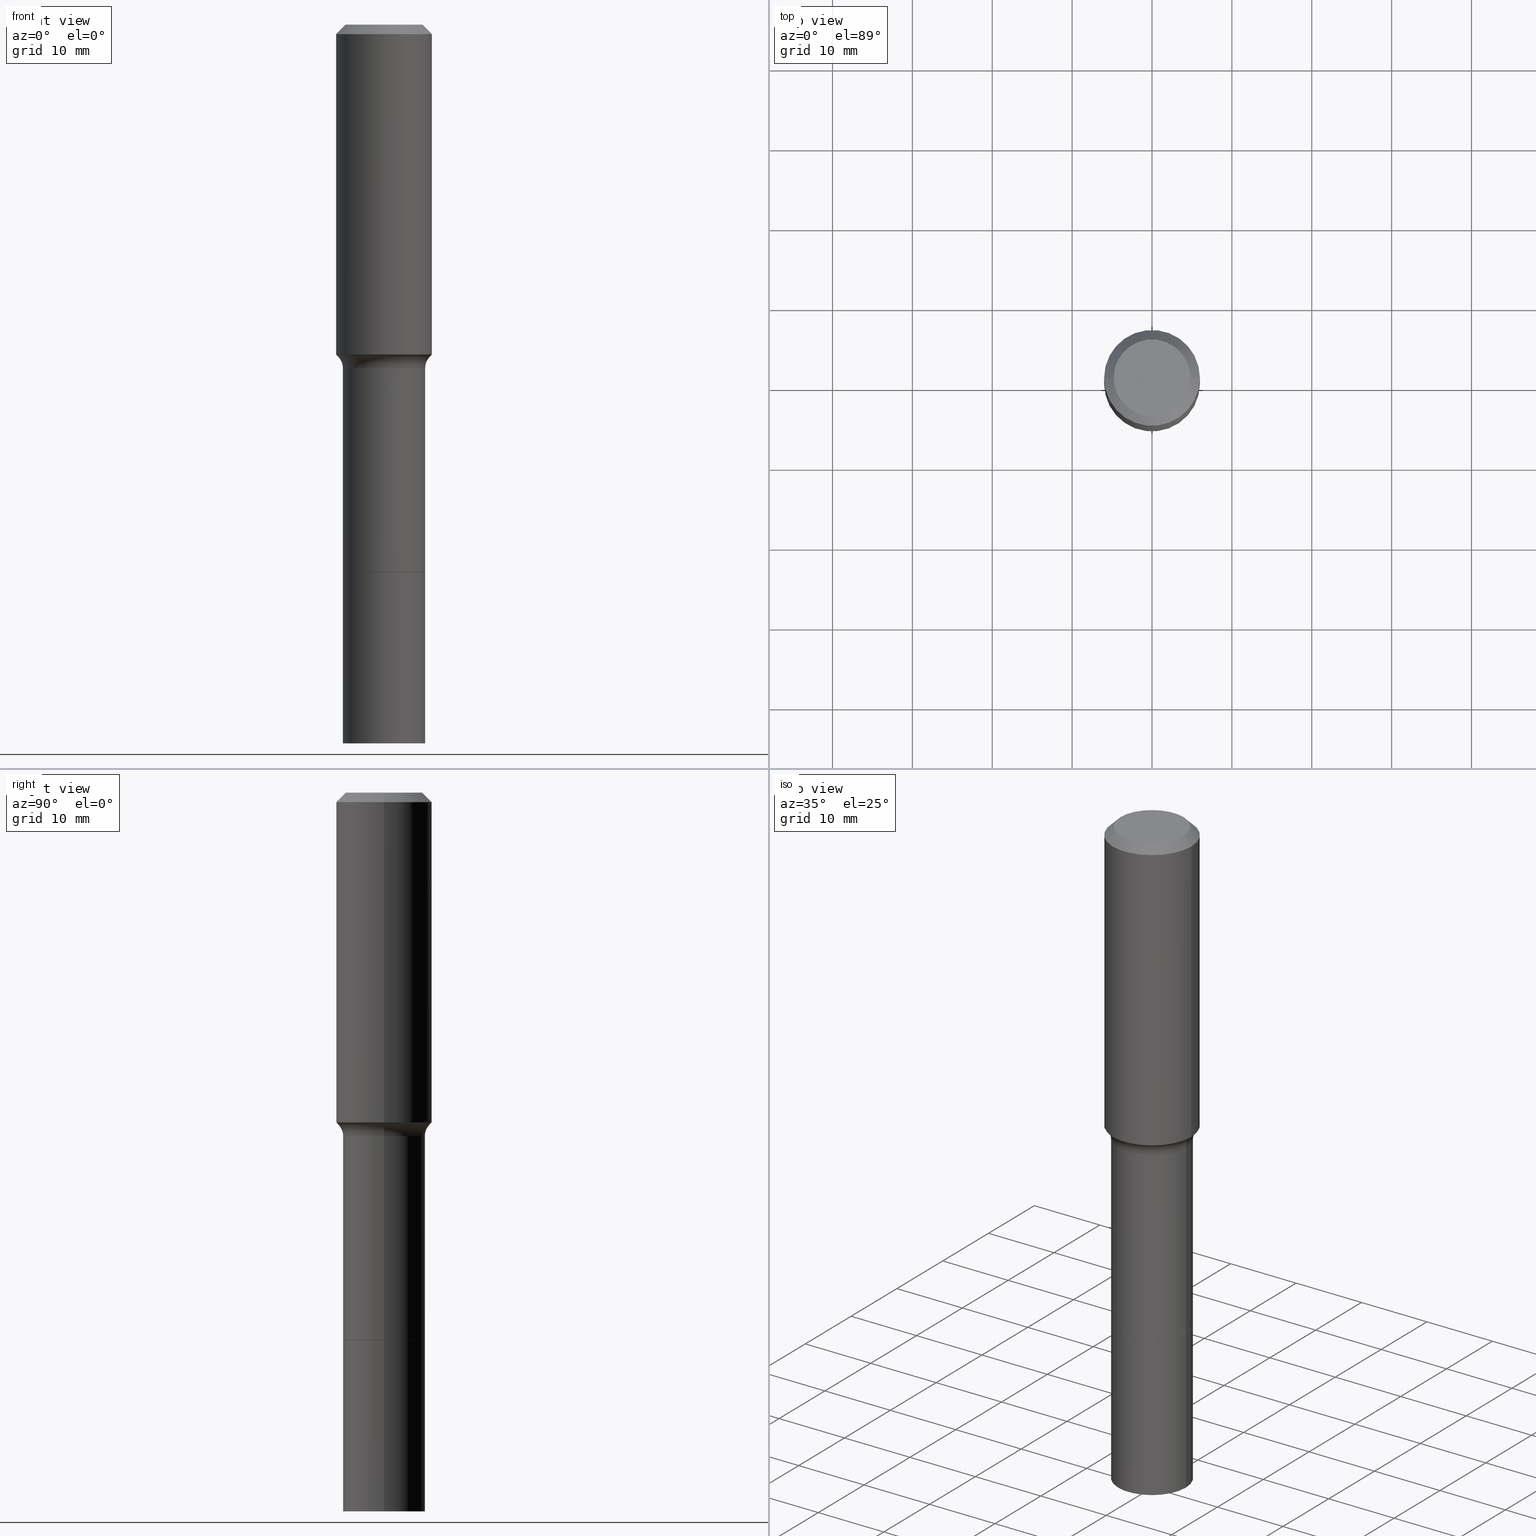
[diagram: canonical four-view strip — front | top / right | iso, engineering-drawing reading convention]
A machine part, canonical four-view strip (front | top / right | iso — engineering-drawing reading convention). The complete STEP part file that produces these views, byte-faithful:
ISO-10303-21;
HEADER;
FILE_DESCRIPTION (( 'STEP AP203' ),
    '1' );
FILE_NAME ('67150.STEP',
    '2025-04-01T15:28:57',
    ( '' ),
    ( '' ),
    'SwSTEP 2.0',
    'SolidWorks 2024',
    '' );
FILE_SCHEMA (( 'CONFIG_CONTROL_DESIGN' ));
ENDSEC;

DATA;
#1 = ADVANCED_FACE ( 'NONE', ( #211 ), #321, .T. ) ;
#2 = EDGE_LOOP ( 'NONE', ( #399, #42, #249, #125 ) ) ;
#3 = APPROVAL_DATE_TIME ( #330, #268 ) ;
#4 = EDGE_LOOP ( 'NONE', ( #44, #269, #469, #325 ) ) ;
#5 = CARTESIAN_POINT ( 'NONE',  ( 0.2027499999999999303, -1.415795682900890079E-15, 9.886448412926257550E-30 ) ) ;
#6 = ORIENTED_EDGE ( 'NONE', *, *, #232, .T. ) ;
#7 = EDGE_CURVE ( 'NONE', #128, #73, #65, .T. ) ;
#8 = CIRCLE ( 'NONE', #218, 0.2027500000000000135 ) ;
#9 = DIRECTION ( 'NONE',  ( 1.000000000000000000, -6.982962677686266711E-15, 0.000000000000000000 ) ) ;
#10 = ORIENTED_EDGE ( 'NONE', *, *, #190, .T. ) ;
#11 = AXIS2_PLACEMENT_3D ( 'NONE', #343, #304, #465 ) ;
#12 = AXIS2_PLACEMENT_3D ( 'NONE', #217, #420, #384 ) ;
#13 = DIRECTION ( 'NONE',  ( 1.000000000000000000, -6.982962677686265922E-15, 4.876176775795935793E-29 ) ) ;
#14 = COORDINATED_UNIVERSAL_TIME_OFFSET ( 5, 0, .BEHIND. ) ;
#15 = EDGE_CURVE ( 'NONE', #76, #119, #221, .T. ) ;
#16 = DIRECTION ( 'NONE',  ( -2.445468806185136597E-29, 3.491481338843145583E-15, 1.000000000000000000 ) ) ;
#17 = DIRECTION ( 'NONE',  ( 1.000000000000000000, -6.982962677686266711E-15, 4.876176775795936353E-29 ) ) ;
#18 = CARTESIAN_POINT ( 'NONE',  ( -9.427742298522546243E-47, 1.346031739168365344E-32, 3.855188123715862256E-18 ) ) ;
#19 = DIRECTION ( 'NONE',  ( 1.000000000000000000, -6.982962677686266711E-15, 4.876176775795936353E-29 ) ) ;
#20 = DIRECTION ( 'NONE',  ( -2.445468806185136597E-29, 3.491481338843145583E-15, 1.000000000000000000 ) ) ;
#21 = AXIS2_PLACEMENT_3D ( 'NONE', #91, #139, #220 ) ;
#22 = CARTESIAN_POINT ( 'NONE',  ( 6.603499417341723147E-29, -9.428047059278143727E-15, -2.700299999999999478 ) ) ;
#23 = LINE ( 'NONE', #311, #382 ) ;
#24 = EDGE_CURVE ( 'NONE', #317, #478, #255, .T. ) ;
#25 = DIRECTION ( 'NONE',  ( 0.7071067811864267805, -2.468850131080992517E-15, 0.7071067811866682540 ) ) ;
#26 = LOCAL_TIME ( 11, 28, 57.00000000000000000, #53 ) ;
#27 = CARTESIAN_POINT ( 'NONE',  ( 8.665029620955794069E-29, -1.237136582792291707E-14, -3.543299999999999894 ) ) ;
#28 = CIRCLE ( 'NONE', #326, 0.1889600000000000168 ) ;
#29 = ORIENTED_EDGE ( 'NONE', *, *, #24, .F. ) ;
#30 = DIRECTION ( 'NONE',  ( -2.445468806185136597E-29, 3.491481338843145583E-15, 1.000000000000000000 ) ) ;
#31 = FACE_OUTER_BOUND ( 'NONE', #296, .T. ) ;
#32 = VERTEX_POINT ( 'NONE', #131 ) ;
#33 = CARTESIAN_POINT ( 'NONE',  ( 4.140912329513291253E-29, -5.912125351063097489E-15, -1.693299999999999583 ) ) ;
#34 = COORDINATED_UNIVERSAL_TIME_OFFSET ( 5, 0, .BEHIND. ) ;
#35 = CARTESIAN_POINT ( 'NONE',  ( 0.2022500000000000131, -1.084035126084019139E-14, -2.700299999999999478 ) ) ;
#36 = ORIENTED_EDGE ( 'NONE', *, *, #302, .T. ) ;
#37 = EDGE_CURVE ( 'NONE', #128, #407, #223, .T. ) ;
#38 = DIRECTION ( 'NONE',  ( -0.7071067811864267805, 7.493145998869918709E-15, 0.7071067811866682540 ) ) ;
#39 = ORIENTED_EDGE ( 'NONE', *, *, #104, .T. ) ;
#40 =( GEOMETRIC_REPRESENTATION_CONTEXT ( 3 ) GLOBAL_UNCERTAINTY_ASSIGNED_CONTEXT ( ( #112 ) ) GLOBAL_UNIT_ASSIGNED_CONTEXT ( ( #231, #152, #398 ) ) REPRESENTATION_CONTEXT ( 'NONE', 'WORKASPACE' ) );
#41 = PERSON_AND_ORGANIZATION_ROLE ( 'design_owner' ) ;
#42 = ORIENTED_EDGE ( 'NONE', *, *, #451, .T. ) ;
#43 = VECTOR ( 'NONE', #138, 39.37007874015748143 ) ;
#44 = ORIENTED_EDGE ( 'NONE', *, *, #37, .F. ) ;
#45 = DATE_AND_TIME ( #333, #279 ) ;
#46 = CARTESIAN_POINT ( 'NONE',  ( 0.000000000000000000, 0.000000000000000000, 0.000000000000000000 ) ) ;
#47 = EDGE_CURVE ( 'NONE', #76, #32, #306, .T. ) ;
#48 = ORIENTED_EDGE ( 'NONE', *, *, #509, .F. ) ;
#49 = AXIS2_PLACEMENT_3D ( 'NONE', #277, #438, #275 ) ;
#50 = FACE_OUTER_BOUND ( 'NONE', #247, .T. ) ;
#51 = VERTEX_POINT ( 'NONE', #58 ) ;
#52 = EDGE_CURVE ( 'NONE', #32, #51, #513, .T. ) ;
#53 = COORDINATED_UNIVERSAL_TIME_OFFSET ( 5, 0, .BEHIND. ) ;
#54 = AXIS2_PLACEMENT_3D ( 'NONE', #206, #368, #9 ) ;
#55 = DIRECTION ( 'NONE',  ( 1.000000000000000000, -6.982962677686268288E-15, 0.000000000000000000 ) ) ;
#56 = DIRECTION ( 'NONE',  ( -2.445468806185136597E-29, 3.491481338843145583E-15, 1.000000000000000000 ) ) ;
#57 = PRODUCT_DEFINITION ( 'UNKNOWN', '', #227, #278 ) ;
#58 = CARTESIAN_POINT ( 'NONE',  ( 0.2361999999999999933, -1.814313362916447440E-15, -0.04724000000000027483 ) ) ;
#59 = LINE ( 'NONE', #195, #379 ) ;
#60 = DIRECTION ( 'NONE',  ( 1.000000000000000000, -6.982962677686266711E-15, 4.876185090822587894E-29 ) ) ;
#61 = DIRECTION ( 'NONE',  ( -2.445468806185136597E-29, 3.491481338843145583E-15, 1.000000000000000000 ) ) ;
#62 = ADVANCED_BREP_SHAPE_REPRESENTATION ( '67150', ( #184, #350, #49 ), #40 ) ;
#63 = CONICAL_SURFACE ( 'NONE', #282, 0.2022500000000000131, 0.7853981633972775267 ) ;
#64 = FACE_OUTER_BOUND ( 'NONE', #281, .T. ) ;
#65 = CIRCLE ( 'NONE', #353, 0.2242417038704663801 ) ;
#66 = CARTESIAN_POINT ( 'NONE',  ( 4.140912329513291253E-29, -5.912125351063097489E-15, -1.693299999999999583 ) ) ;
#67 = CC_DESIGN_PERSON_AND_ORGANIZATION_ASSIGNMENT ( #487, #245, ( #57 ) ) ;
#68 = CARTESIAN_POINT ( 'NONE',  ( 4.140912329513291253E-29, -5.912125351063097489E-15, -1.693299999999999583 ) ) ;
#69 = DIRECTION ( 'NONE',  ( -1.000000000000000000, 6.982962677686265922E-15, -4.876176775795935793E-29 ) ) ;
#70 = AXIS2_PLACEMENT_3D ( 'NONE', #256, #373, #13 ) ;
#71 = CC_DESIGN_PERSON_AND_ORGANIZATION_ASSIGNMENT ( #164, #301, ( #227 ) ) ;
#72 = APPROVAL_DATE_TIME ( #433, #461 ) ;
#73 = VERTEX_POINT ( 'NONE', #216 ) ;
#74 = CARTESIAN_POINT ( 'NONE',  ( -0.2022500000000000131, -7.990974376203340811E-15, -2.700299999999999478 ) ) ;
#75 = EDGE_CURVE ( 'NONE', #409, #317, #23, .T. ) ;
#76 = VERTEX_POINT ( 'NONE', #259 ) ;
#77 = CIRCLE ( 'NONE', #132, 0.07999999999999996003 ) ;
#78 = DIRECTION ( 'NONE',  ( -2.445468806185136597E-29, 3.491481338843145583E-15, 1.000000000000000000 ) ) ;
#79 = ORIENTED_EDGE ( 'NONE', *, *, #156, .F. ) ;
#80 = ORIENTED_EDGE ( 'NONE', *, *, #254, .F. ) ;
#81 = EDGE_CURVE ( 'NONE', #115, #407, #423, .T. ) ;
#82 = CALENDAR_DATE ( 2025, 1, 4 ) ;
#83 = FACE_OUTER_BOUND ( 'NONE', #228, .T. ) ;
#84 = EDGE_LOOP ( 'NONE', ( #197, #143, #154, #48 ) ) ;
#85 = AXIS2_PLACEMENT_3D ( 'NONE', #180, #99, #337 ) ;
#86 = DIRECTION ( 'NONE',  ( -2.445468806185136597E-29, 3.491481338843145583E-15, 1.000000000000000000 ) ) ;
#87 = ORIENTED_EDGE ( 'NONE', *, *, #490, .F. ) ;
#88 = CARTESIAN_POINT ( 'NONE',  ( 6.603499417341723147E-29, -9.428047059278143727E-15, -2.700299999999999478 ) ) ;
#89 = ORIENTED_EDGE ( 'NONE', *, *, #264, .F. ) ;
#90 = DATE_TIME_ROLE ( 'classification_date' ) ;
#91 = CARTESIAN_POINT ( 'NONE',  ( 6.603499417341723147E-29, -9.428047059278143727E-15, -2.700299999999999478 ) ) ;
#92 = ADVANCED_FACE ( 'NONE', ( #498 ), #174, .F. ) ;
#93 = SHAPE_DEFINITION_REPRESENTATION ( #507, #62 ) ;
#94 = CIRCLE ( 'NONE', #230, 0.2027500000000002078 ) ;
#95 = FACE_OUTER_BOUND ( 'NONE', #193, .T. ) ;
#96 = CARTESIAN_POINT ( 'NONE',  ( -9.427742298522546243E-47, 1.346031739168365344E-32, 3.855188123715862256E-18 ) ) ;
#97 = ORIENTED_EDGE ( 'NONE', *, *, #264, .T. ) ;
#98 = DIRECTION ( 'NONE',  ( -2.445468806185136597E-29, 3.491481338843145583E-15, 1.000000000000000000 ) ) ;
#99 = DIRECTION ( 'NONE',  ( 2.438088387897960049E-29, -3.491481338843145188E-15, -1.000000000000000000 ) ) ;
#100 = CARTESIAN_POINT ( 'NONE',  ( 0.2362000000000001043, -1.649375784469496920E-15, 1.151752954443000508E-29 ) ) ;
#101 = DIRECTION ( 'NONE',  ( 1.000000000000000000, -6.982962677686266711E-15, 0.000000000000000000 ) ) ;
#102 = CYLINDRICAL_SURFACE ( 'NONE', #142, 0.2027499999999999303 ) ;
#103 = DIRECTION ( 'NONE',  ( 1.000000000000000000, -6.982962677686262766E-15, 0.000000000000000000 ) ) ;
#104 = EDGE_CURVE ( 'NONE', #407, #115, #192, .T. ) ;
#105 = FACE_OUTER_BOUND ( 'NONE', #428, .T. ) ;
#106 = ORIENTED_EDGE ( 'NONE', *, *, #429, .F. ) ;
#107 = APPROVAL_STATUS ( 'not_yet_approved' ) ;
#108 = CARTESIAN_POINT ( 'NONE',  ( -0.2362000000000001043, 1.678301941865357380E-15, -1.161852468318209317E-29 ) ) ;
#109 = CONICAL_SURFACE ( 'NONE', #185, 0.2361999999999999933, 0.7853981633974452814 ) ;
#110 = AXIS2_PLACEMENT_3D ( 'NONE', #187, #133, #459 ) ;
#111 = CALENDAR_DATE ( 2025, 1, 4 ) ;
#112 = UNCERTAINTY_MEASURE_WITH_UNIT (LENGTH_MEASURE( 1.000000000000000082E-05 ), #231, 'distance_accuracy_value', 'NONE');
#113 = ORIENTED_EDGE ( 'NONE', *, *, #355, .T. ) ;
#114 = ADVANCED_FACE ( 'NONE', ( #137 ), #432, .T. ) ;
#115 = VERTEX_POINT ( 'NONE', #265 ) ;
#116 = VECTOR ( 'NONE', #38, 39.37007874015748143 ) ;
#117 = ORIENTED_EDGE ( 'NONE', *, *, #341, .F. ) ;
#118 = AXIS2_PLACEMENT_3D ( 'NONE', #68, #339, #307 ) ;
#119 = VERTEX_POINT ( 'NONE', #134 ) ;
#120 = ADVANCED_FACE ( 'NONE', ( #64 ), #109, .T. ) ;
#121 = EDGE_LOOP ( 'NONE', ( #157, #511 ) ) ;
#122 = SECURITY_CLASSIFICATION_LEVEL ( 'unclassified' ) ;
#123 = ORIENTED_EDGE ( 'NONE', *, *, #24, .T. ) ;
#124 = AXIS2_PLACEMENT_3D ( 'NONE', #502, #56, #171 ) ;
#125 = ORIENTED_EDGE ( 'NONE', *, *, #246, .F. ) ;
#126 = APPROVAL_STATUS ( 'not_yet_approved' ) ;
#127 = ADVANCED_FACE ( 'NONE', ( #95 ), #422, .F. ) ;
#128 = VERTEX_POINT ( 'NONE', #170 ) ;
#129 = COORDINATED_UNIVERSAL_TIME_OFFSET ( 5, 0, .BEHIND. ) ;
#130 = CARTESIAN_POINT ( 'NONE',  ( 8.665029620955794069E-29, -1.237136582792291707E-14, -3.543299999999999894 ) ) ;
#131 = CARTESIAN_POINT ( 'NONE',  ( -0.2361999999999999933, -1.242595281846650388E-15, -0.04724000000000027483 ) ) ;
#132 = AXIS2_PLACEMENT_3D ( 'NONE', #172, #405, #372 ) ;
#133 = DIRECTION ( 'NONE',  ( -2.445468806185136597E-29, 3.491481338843145583E-15, 1.000000000000000000 ) ) ;
#134 = CARTESIAN_POINT ( 'NONE',  ( 0.1889600000000000168, -1.540873453589747738E-15, 3.855188123725863225E-18 ) ) ;
#135 = ADVANCED_FACE ( 'NONE', ( #334 ), #303, .T. ) ;
#136 = LINE ( 'NONE', #383, #43 ) ;
#137 = FACE_OUTER_BOUND ( 'NONE', #243, .T. ) ;
#138 = DIRECTION ( 'NONE',  ( 0.7071067811865453523, -7.319954787623248157E-15, -0.7071067811865496822 ) ) ;
#139 = DIRECTION ( 'NONE',  ( -2.445468806185136597E-29, 3.491481338843145583E-15, 1.000000000000000000 ) ) ;
#140 = DIRECTION ( 'NONE',  ( 1.000000000000000000, -6.982962677686269866E-15, 0.000000000000000000 ) ) ;
#141 = AXIS2_PLACEMENT_3D ( 'NONE', #497, #291, #447 ) ;
#142 = AXIS2_PLACEMENT_3D ( 'NONE', #467, #266, #19 ) ;
#143 = ORIENTED_EDGE ( 'NONE', *, *, #37, .T. ) ;
#144 = DIRECTION ( 'NONE',  ( 1.000000000000000000, -6.982962677686268288E-15, 0.000000000000000000 ) ) ;
#145 = VERTEX_POINT ( 'NONE', #280 ) ;
#146 = APPLICATION_PROTOCOL_DEFINITION ( 'international standard', 'config_control_design', 1994, #241 ) ;
#147 = CC_DESIGN_APPROVAL ( #366, ( #227 ) ) ;
#148 = ORIENTED_EDGE ( 'NONE', *, *, #362, .T. ) ;
#149 = AXIS2_PLACEMENT_3D ( 'NONE', #18, #16, #60 ) ;
#150 = ADVANCED_FACE ( 'NONE', ( #31 ), #319, .T. ) ;
#151 = PERSON ( 'UNSPECIFIED', 'UNSPECIFIED', 'UNSPECIFIED', ('UNSPECIFIED'), ('UNSPECIFIED'), ('UNSPECIFIED') ) ;
#152 =( NAMED_UNIT ( * ) PLANE_ANGLE_UNIT ( ) SI_UNIT ( $, .RADIAN. ) );
#153 = CARTESIAN_POINT ( 'NONE',  ( 0.2242417038704663801, -7.287502036188952833E-15, -1.638740131194999838 ) ) ;
#154 = ORIENTED_EDGE ( 'NONE', *, *, #81, .F. ) ;
#155 = APPLICATION_CONTEXT ( 'configuration controlled 3d designs of mechanical parts and assemblies' ) ;
#156 = EDGE_CURVE ( 'NONE', #359, #444, #475, .T. ) ;
#157 = ORIENTED_EDGE ( 'NONE', *, *, #232, .F. ) ;
#158 = CONICAL_SURFACE ( 'NONE', #274, 0.2361999999999999933, 0.7853981633974452814 ) ;
#159 = ORIENTED_EDGE ( 'NONE', *, *, #167, .T. ) ;
#160 = FACE_OUTER_BOUND ( 'NONE', #121, .T. ) ;
#161 = DIRECTION ( 'NONE',  ( -2.445468806185136877E-29, 3.491481338843145188E-15, 1.000000000000000000 ) ) ;
#162 = ORIENTED_EDGE ( 'NONE', *, *, #156, .T. ) ;
#163 = CC_DESIGN_APPROVAL ( #461, ( #57 ) ) ;
#164 = PERSON_AND_ORGANIZATION ( #151, #430 ) ;
#165 = CARTESIAN_POINT ( 'NONE',  ( 0.2827499999999999458, -7.886558048178889023E-15, -1.693299999999999583 ) ) ;
#166 = ORIENTED_EDGE ( 'NONE', *, *, #505, .T. ) ;
#167 = EDGE_CURVE ( 'NONE', #407, #32, #388, .T. ) ;
#168 = CIRCLE ( 'NONE', #466, 0.2022500000000000131 ) ;
#169 = APPROVAL_ROLE ( '' ) ;
#170 = CARTESIAN_POINT ( 'NONE',  ( -0.2242417038704663246, -4.128297449884435935E-15, -1.638740131194999838 ) ) ;
#171 = DIRECTION ( 'NONE',  ( 1.000000000000000000, -6.982962677686266711E-15, 0.000000000000000000 ) ) ;
#172 = CARTESIAN_POINT ( 'NONE',  ( -0.2827499999999999458, -3.903065765701414598E-15, -1.693299999999999583 ) ) ;
#173 = ADVANCED_FACE ( 'NONE', ( #402 ), #238, .T. ) ;
#174 = PLANE ( 'NONE',  #85 ) ;
#175 = AXIS2_PLACEMENT_3D ( 'NONE', #495, #253, #514 ) ;
#176 = DIRECTION ( 'NONE',  ( -2.445468806185136597E-29, 3.491481338843145583E-15, 1.000000000000000000 ) ) ;
#177 = CARTESIAN_POINT ( 'NONE',  ( 4.007487872281110361E-29, -5.721630587280709429E-15, -1.638740131194999838 ) ) ;
#178 = ADVANCED_FACE ( 'NONE', ( #160 ), #288, .T. ) ;
#179 = CARTESIAN_POINT ( 'NONE',  ( 1.155239464041865331E-30, -1.649375784469511612E-16, -0.04724000000000027483 ) ) ;
#180 = CARTESIAN_POINT ( 'NONE',  ( -4.713871149261273121E-47, 6.730158695841826722E-33, 1.927594061857931128E-18 ) ) ;
#181 = FACE_OUTER_BOUND ( 'NONE', #4, .T. ) ;
#182 = CIRCLE ( 'NONE', #480, 0.2022500000000000131 ) ;
#183 = CARTESIAN_POINT ( 'NONE',  ( -0.2027499999999998748, -6.228587938082306830E-15, -1.693299999999999583 ) ) ;
#184 = MANIFOLD_SOLID_BREP ( 'Body-Move/Copy2[1]', #363 ) ;
#185 = AXIS2_PLACEMENT_3D ( 'NONE', #308, #463, #262 ) ;
#186 = AXIS2_PLACEMENT_3D ( 'NONE', #226, #176, #261 ) ;
#187 = CARTESIAN_POINT ( 'NONE',  ( 6.602276682938630345E-29, -9.426301318608721435E-15, -2.699799999999999311 ) ) ;
#188 = CARTESIAN_POINT ( 'NONE',  ( 0.000000000000000000, 0.000000000000000000, 0.000000000000000000 ) ) ;
#189 = APPROVAL_PERSON_ORGANIZATION ( #472, #461, #273 ) ;
#190 = EDGE_CURVE ( 'NONE', #145, #478, #252, .T. ) ;
#191 = DIRECTION ( 'NONE',  ( 1.000000000000000000, -6.982962677686266711E-15, 0.000000000000000000 ) ) ;
#192 = CIRCLE ( 'NONE', #483, 0.2362000000000002153 ) ;
#193 = EDGE_LOOP ( 'NONE', ( #287, #364 ) ) ;
#194 = EDGE_CURVE ( 'NONE', #403, #471, #168, .T. ) ;
#195 = CARTESIAN_POINT ( 'NONE',  ( -0.2027499999999999303, 1.440625396753602631E-15, -9.973140895491818136E-30 ) ) ;
#196 = ORIENTED_EDGE ( 'NONE', *, *, #505, .F. ) ;
#197 = ORIENTED_EDGE ( 'NONE', *, *, #341, .T. ) ;
#198 = LENGTH_MEASURE_WITH_UNIT ( LENGTH_MEASURE( 0.02539999999999999897 ), #351 );
#199 = ORIENTED_EDGE ( 'NONE', *, *, #302, .F. ) ;
#200 = VECTOR ( 'NONE', #161, 39.37007874015748143 ) ;
#201 = PERSON_AND_ORGANIZATION ( #151, #430 ) ;
#202 = DIRECTION ( 'NONE',  ( 1.000000000000000000, -6.982962677686262766E-15, 0.000000000000000000 ) ) ;
#203 = CARTESIAN_POINT ( 'NONE',  ( 4.140912329513291253E-29, -5.912125351063097489E-15, -1.693299999999999583 ) ) ;
#204 = ORIENTED_EDGE ( 'NONE', *, *, #490, .T. ) ;
#205 = CALENDAR_DATE ( 2025, 1, 4 ) ;
#206 = CARTESIAN_POINT ( 'NONE',  ( 6.602276682938630345E-29, -9.426301318608721435E-15, -2.699799999999999311 ) ) ;
#207 = VERTEX_POINT ( 'NONE', #336 ) ;
#208 = ADVANCED_FACE ( 'NONE', ( #50 ), #377, .T. ) ;
#209 = CARTESIAN_POINT ( 'NONE',  ( 6.603499417341723147E-29, -9.428047059278143727E-15, -2.700299999999999478 ) ) ;
#210 = DIRECTION ( 'NONE',  ( -2.445468806185136597E-29, 3.491481338843145583E-15, 1.000000000000000000 ) ) ;
#211 = FACE_OUTER_BOUND ( 'NONE', #84, .T. ) ;
#212 = EDGE_CURVE ( 'NONE', #128, #359, #77, .T. ) ;
#213 = AXIS2_PLACEMENT_3D ( 'NONE', #203, #365, #488 ) ;
#214 = AXIS2_PLACEMENT_3D ( 'NONE', #66, #98, #305 ) ;
#215 = CALENDAR_DATE ( 2025, 1, 4 ) ;
#216 = CARTESIAN_POINT ( 'NONE',  ( 0.2242417038704663246, -7.287502036188952833E-15, -1.638740131194999838 ) ) ;
#217 = CARTESIAN_POINT ( 'NONE',  ( 4.007487872281110361E-29, -5.721630587280709429E-15, -1.638740131194999838 ) ) ;
#218 = AXIS2_PLACEMENT_3D ( 'NONE', #320, #392, #443 ) ;
#219 = DIRECTION ( 'NONE',  ( 1.000000000000000000, -6.982962677686265133E-15, 0.000000000000000000 ) ) ;
#220 = DIRECTION ( 'NONE',  ( 1.000000000000000000, -6.982962677686266711E-15, 0.000000000000000000 ) ) ;
#221 = CIRCLE ( 'NONE', #149, 0.1889600000000000168 ) ;
#222 = CARTESIAN_POINT ( 'NONE',  ( -0.2022500000000000131, -7.988325149029228821E-15, -2.700299999999999478 ) ) ;
#223 = LINE ( 'NONE', #335, #312 ) ;
#224 = DIRECTION ( 'NONE',  ( -2.445468806185136597E-29, 3.491481338843145583E-15, 1.000000000000000000 ) ) ;
#225 = DIRECTION ( 'NONE',  ( -2.445468806185136597E-29, 3.491481338843145583E-15, 1.000000000000000000 ) ) ;
#226 = CARTESIAN_POINT ( 'NONE',  ( 4.007487872281110361E-29, -5.721630587280709429E-15, -1.638740131194999838 ) ) ;
#227 = PRODUCT_DEFINITION_FORMATION_WITH_SPECIFIED_SOURCE ( 'ANY', '', #435, .NOT_KNOWN. ) ;
#228 = EDGE_LOOP ( 'NONE', ( #300, #117, #97, #113 ) ) ;
#229 = CARTESIAN_POINT ( 'NONE',  ( 6.603499417341723147E-29, -9.428047059278143727E-15, -2.700299999999999478 ) ) ;
#230 = AXIS2_PLACEMENT_3D ( 'NONE', #27, #424, #140 ) ;
#231 =( CONVERSION_BASED_UNIT ( 'INCH', #198 ) LENGTH_UNIT ( ) NAMED_UNIT ( #406 ) );
#232 = EDGE_CURVE ( 'NONE', #145, #409, #374, .T. ) ;
#233 = DIRECTION ( 'NONE',  ( 0.6819983600625018072, -2.208861293262509724E-15, 0.7313537016191673512 ) ) ;
#234 = ADVANCED_FACE ( 'NONE', ( #83 ), #439, .F. ) ;
#235 = AXIS2_PLACEMENT_3D ( 'NONE', #188, #283, #440 ) ;
#236 = EDGE_LOOP ( 'NONE', ( #453, #517, #10, #29 ) ) ;
#237 = LINE ( 'NONE', #153, #318 ) ;
#238 = CYLINDRICAL_SURFACE ( 'NONE', #338, 0.2027500000000001246 ) ;
#239 = EDGE_LOOP ( 'NONE', ( #486, #450, #106, #434 ) ) ;
#240 = CC_DESIGN_PERSON_AND_ORGANIZATION_ASSIGNMENT ( #248, #361, ( #446 ) ) ;
#241 = APPLICATION_CONTEXT ( 'configuration controlled 3d designs of mechanical parts and assemblies' ) ;
#242 = PERSON_AND_ORGANIZATION ( #151, #430 ) ;
#243 = EDGE_LOOP ( 'NONE', ( #292, #485, #148, #80 ) ) ;
#244 = ORIENTED_EDGE ( 'NONE', *, *, #212, .T. ) ;
#245 = PERSON_AND_ORGANIZATION_ROLE ( 'creator' ) ;
#246 = EDGE_CURVE ( 'NONE', #207, #444, #400, .T. ) ;
#247 = EDGE_LOOP ( 'NONE', ( #460, #442, #276, #79 ) ) ;
#248 = PERSON_AND_ORGANIZATION ( #151, #430 ) ;
#249 = ORIENTED_EDGE ( 'NONE', *, *, #355, .F. ) ;
#250 = LOCAL_TIME ( 11, 28, 57.00000000000000000, #14 ) ;
#251 = APPROVAL_ROLE ( '' ) ;
#252 = LINE ( 'NONE', #412, #395 ) ;
#253 = DIRECTION ( 'NONE',  ( -2.445468806185136597E-29, 3.491481338843145583E-15, 1.000000000000000000 ) ) ;
#254 = EDGE_CURVE ( 'NONE', #327, #207, #284, .T. ) ;
#255 = CIRCLE ( 'NONE', #21, 0.2027500000000000135 ) ;
#256 = CARTESIAN_POINT ( 'NONE',  ( 6.603499417341723147E-29, -9.428047059278143727E-15, -2.700299999999999478 ) ) ;
#257 = CC_DESIGN_DATE_AND_TIME_ASSIGNMENT ( #411, #404, ( #57 ) ) ;
#258 = DIRECTION ( 'NONE',  ( 1.000000000000000000, -6.982962677686268288E-15, 0.000000000000000000 ) ) ;
#259 = CARTESIAN_POINT ( 'NONE',  ( -0.1889600000000000168, 1.401969416799070942E-15, 3.855188123706346622E-18 ) ) ;
#260 = LOCAL_TIME ( 11, 28, 57.00000000000000000, #371 ) ;
#261 = DIRECTION ( 'NONE',  ( 1.000000000000000000, -6.982962677686265133E-15, 0.000000000000000000 ) ) ;
#262 = DIRECTION ( 'NONE',  ( -1.000000000000000000, 6.982962677686266711E-15, 0.000000000000000000 ) ) ;
#263 = AXIS2_PLACEMENT_3D ( 'NONE', #130, #491, #299 ) ;
#264 = EDGE_CURVE ( 'NONE', #73, #444, #499, .T. ) ;
#265 = CARTESIAN_POINT ( 'NONE',  ( 0.2362000000000002153, -7.326232653446561936E-15, -1.625916428600478580 ) ) ;
#266 = DIRECTION ( 'NONE',  ( -2.445468806185136597E-29, 3.491481338843145583E-15, 1.000000000000000000 ) ) ;
#267 = DIRECTION ( 'NONE',  ( 1.000000000000000000, -6.982962677686266711E-15, 0.000000000000000000 ) ) ;
#268 = APPROVAL ( #408, 'UNSPECIFIED' ) ;
#269 = ORIENTED_EDGE ( 'NONE', *, *, #7, .T. ) ;
#270 = CC_DESIGN_APPROVAL ( #268, ( #446 ) ) ;
#271 = PLANE ( 'NONE',  #360 ) ;
#272 = EDGE_CURVE ( 'NONE', #119, #76, #28, .T. ) ;
#273 = APPROVAL_ROLE ( '' ) ;
#274 = AXIS2_PLACEMENT_3D ( 'NONE', #179, #314, #342 ) ;
#275 = DIRECTION ( 'NONE',  ( 1.000000000000000000, 0.000000000000000000, 0.000000000000000000 ) ) ;
#276 = ORIENTED_EDGE ( 'NONE', *, *, #246, .T. ) ;
#277 = CARTESIAN_POINT ( 'NONE',  ( 0.000000000000000000, 0.000000000000000000, 0.000000000000000000 ) ) ;
#278 = DESIGN_CONTEXT ( 'detailed design', #241, 'design' ) ;
#279 = LOCAL_TIME ( 11, 28, 57.00000000000000000, #129 ) ;
#280 = CARTESIAN_POINT ( 'NONE',  ( 0.2027500000000002078, -1.378716151082380932E-14, -3.543299999999999894 ) ) ;
#281 = EDGE_LOOP ( 'NONE', ( #354, #482, #166, #370 ) ) ;
#282 = AXIS2_PLACEMENT_3D ( 'NONE', #347, #61, #144 ) ;
#283 = DIRECTION ( 'NONE',  ( -2.445468806185136597E-29, 3.491481338843145583E-15, 1.000000000000000000 ) ) ;
#284 = CIRCLE ( 'NONE', #54, 0.2027500000000000135 ) ;
#285 = EDGE_CURVE ( 'NONE', #409, #145, #94, .T. ) ;
#286 = CIRCLE ( 'NONE', #441, 0.2242417038704663801 ) ;
#287 = ORIENTED_EDGE ( 'NONE', *, *, #418, .F. ) ;
#288 = PLANE ( 'NONE',  #263 ) ;
#289 = ORIENTED_EDGE ( 'NONE', *, *, #52, .F. ) ;
#290 = DIRECTION ( 'NONE',  ( -2.445468806185136597E-29, 3.491481338843145583E-15, 1.000000000000000000 ) ) ;
#291 = DIRECTION ( 'NONE',  ( -2.445468806185136597E-29, 3.491481338843145583E-15, 1.000000000000000000 ) ) ;
#292 = ORIENTED_EDGE ( 'NONE', *, *, #458, .F. ) ;
#293 = CIRCLE ( 'NONE', #110, 0.2027500000000000135 ) ;
#294 = ADVANCED_FACE ( 'NONE', ( #503 ), #158, .T. ) ;
#295 = APPROVAL_DATE_TIME ( #45, #366 ) ;
#296 = EDGE_LOOP ( 'NONE', ( #6, #476, #87, #489 ) ) ;
#297 = AXIS2_PLACEMENT_3D ( 'NONE', #496, #20, #456 ) ;
#298 = CC_DESIGN_PERSON_AND_ORGANIZATION_ASSIGNMENT ( #201, #494, ( #227 ) ) ;
#299 = DIRECTION ( 'NONE',  ( -1.000000000000000000, 6.982962677686265922E-15, -4.876176775795935793E-29 ) ) ;
#300 = ORIENTED_EDGE ( 'NONE', *, *, #212, .F. ) ;
#301 = PERSON_AND_ORGANIZATION_ROLE ( 'design_supplier' ) ;
#302 = EDGE_CURVE ( 'NONE', #115, #51, #426, .T. ) ;
#303 = CYLINDRICAL_SURFACE ( 'NONE', #175, 0.2362000000000001043 ) ;
#304 = DIRECTION ( 'NONE',  ( -2.445468806185136597E-29, 3.491481338843145583E-15, 1.000000000000000000 ) ) ;
#305 = DIRECTION ( 'NONE',  ( 1.000000000000000000, -6.982962677686268288E-15, 4.883557194083112901E-29 ) ) ;
#306 = LINE ( 'NONE', #504, #401 ) ;
#307 = DIRECTION ( 'NONE',  ( 1.000000000000000000, -6.982962677686266711E-15, 0.000000000000000000 ) ) ;
#308 = CARTESIAN_POINT ( 'NONE',  ( 1.155239464041865331E-30, -1.649375784469511612E-16, -0.04724000000000027483 ) ) ;
#309 = CIRCLE ( 'NONE', #437, 0.2361999999999999933 ) ;
#310 = CARTESIAN_POINT ( 'NONE',  ( -0.2027500000000000413, -6.228587938082304464E-15, -2.699799999999999311 ) ) ;
#311 = CARTESIAN_POINT ( 'NONE',  ( -0.2027500000000001246, -7.987421662524539123E-15, -2.700299999999999478 ) ) ;
#312 = VECTOR ( 'NONE', #378, 39.37007874015748854 ) ;
#313 = PRODUCT_RELATED_PRODUCT_CATEGORY ( 'detail', '', ( #435 ) ) ;
#314 = DIRECTION ( 'NONE',  ( 2.445468806185136597E-29, -3.491481338843145583E-15, -1.000000000000000000 ) ) ;
#315 = ORIENTED_EDGE ( 'NONE', *, *, #15, .F. ) ;
#316 = CARTESIAN_POINT ( 'NONE',  ( -0.2362000000000002153, -3.998554927111705861E-15, -1.625916428600478580 ) ) ;
#317 = VERTEX_POINT ( 'NONE', #506 ) ;
#318 = VECTOR ( 'NONE', #233, 39.37007874015748854 ) ;
#319 = CYLINDRICAL_SURFACE ( 'NONE', #449, 0.2027500000000001246 ) ;
#320 = CARTESIAN_POINT ( 'NONE',  ( 6.603499417341723147E-29, -9.428047059278143727E-15, -2.700299999999999478 ) ) ;
#321 = CONICAL_SURFACE ( 'NONE', #12, 0.2242417038704663801, 0.7504915783575663024 ) ;
#322 = CYLINDRICAL_SURFACE ( 'NONE', #235, 0.2362000000000001043 ) ;
#323 = EDGE_CURVE ( 'NONE', #119, #51, #136, .T. ) ;
#324 = APPROVAL_PERSON_ORGANIZATION ( #445, #268, #251 ) ;
#325 = ORIENTED_EDGE ( 'NONE', *, *, #104, .F. ) ;
#326 = AXIS2_PLACEMENT_3D ( 'NONE', #96, #224, #349 ) ;
#327 = VERTEX_POINT ( 'NONE', #310 ) ;
#328 = ORIENTED_EDGE ( 'NONE', *, *, #323, .F. ) ;
#329 = ORIENTED_EDGE ( 'NONE', *, *, #167, .F. ) ;
#330 = DATE_AND_TIME ( #215, #26 ) ;
#331 = ORIENTED_EDGE ( 'NONE', *, *, #7, .F. ) ;
#332 = VECTOR ( 'NONE', #427, 39.37007874015748143 ) ;
#333 = CALENDAR_DATE ( 2025, 1, 4 ) ;
#334 = FACE_OUTER_BOUND ( 'NONE', #448, .T. ) ;
#335 = CARTESIAN_POINT ( 'NONE',  ( -0.2242417038704663801, -4.128297449884435146E-15, -1.638740131194999838 ) ) ;
#336 = CARTESIAN_POINT ( 'NONE',  ( 0.2027500000000000135, -1.084209700150961210E-14, -2.699799999999999311 ) ) ;
#337 = DIRECTION ( 'NONE',  ( -1.000000000000000000, 6.982962677686265922E-15, -4.876176775795935793E-29 ) ) ;
#338 = AXIS2_PLACEMENT_3D ( 'NONE', #209, #290, #202 ) ;
#339 = DIRECTION ( 'NONE',  ( -2.445468806185136597E-29, 3.491481338843145583E-15, 1.000000000000000000 ) ) ;
#340 = DIRECTION ( 'NONE',  ( -0.7071067811865453523, 2.468850131082234184E-15, -0.7071067811865496822 ) ) ;
#341 = EDGE_CURVE ( 'NONE', #73, #128, #286, .T. ) ;
#342 = DIRECTION ( 'NONE',  ( -1.000000000000000000, 6.982962677686266711E-15, 0.000000000000000000 ) ) ;
#343 = CARTESIAN_POINT ( 'NONE',  ( 3.976127907606413432E-29, -5.676856868977064622E-15, -1.625916428600478580 ) ) ;
#344 = DIRECTION ( 'NONE',  ( -6.982962677686266711E-15, -1.000000000000000000, 3.491481338843145583E-15 ) ) ;
#345 = AXIS2_PLACEMENT_3D ( 'NONE', #165, #344, #421 ) ;
#346 = CIRCLE ( 'NONE', #118, 0.2027499999999998748 ) ;
#347 = CARTESIAN_POINT ( 'NONE',  ( 6.603499417341723147E-29, -9.428047059278143727E-15, -2.700299999999999478 ) ) ;
#348 = ADVANCED_FACE ( 'NONE', ( #391 ), #102, .T. ) ;
#349 = DIRECTION ( 'NONE',  ( 1.000000000000000000, -6.982962677686266711E-15, 4.876185090822587894E-29 ) ) ;
#350 = MANIFOLD_SOLID_BREP ( 'Body-Move/Copy2[2]', #414 ) ;
#351 =( LENGTH_UNIT ( ) NAMED_UNIT ( * ) SI_UNIT ( $, .METRE. ) );
#352 = FACE_OUTER_BOUND ( 'NONE', #493, .T. ) ;
#353 = AXIS2_PLACEMENT_3D ( 'NONE', #177, #413, #376 ) ;
#354 = ORIENTED_EDGE ( 'NONE', *, *, #272, .F. ) ;
#355 = EDGE_CURVE ( 'NONE', #444, #359, #346, .T. ) ;
#356 = CARTESIAN_POINT ( 'NONE',  ( 0.2027500000000000135, -1.084384274217903440E-14, -2.700299999999999478 ) ) ;
#357 = ORIENTED_EDGE ( 'NONE', *, *, #81, .T. ) ;
#358 = ADVANCED_FACE ( 'NONE', ( #462 ), #415, .F. ) ;
#359 = VERTEX_POINT ( 'NONE', #183 ) ;
#360 = AXIS2_PLACEMENT_3D ( 'NONE', #22, #431, #69 ) ;
#361 = PERSON_AND_ORGANIZATION_ROLE ( 'classification_officer' ) ;
#362 = EDGE_CURVE ( 'NONE', #471, #207, #385, .T. ) ;
#363 = CLOSED_SHELL ( 'NONE', ( #150, #178, #173, #410 ) ) ;
#364 = ORIENTED_EDGE ( 'NONE', *, *, #194, .F. ) ;
#365 = DIRECTION ( 'NONE',  ( -2.445468806185136597E-29, 3.491481338843145583E-15, 1.000000000000000000 ) ) ;
#366 = APPROVAL ( #126, 'UNSPECIFIED' ) ;
#367 = EDGE_LOOP ( 'NONE', ( #397, #436 ) ) ;
#368 = DIRECTION ( 'NONE',  ( -2.445468806185136597E-29, 3.491481338843145583E-15, 1.000000000000000000 ) ) ;
#369 = LOCAL_TIME ( 11, 28, 57.00000000000000000, #34 ) ;
#370 = ORIENTED_EDGE ( 'NONE', *, *, #47, .F. ) ;
#371 = COORDINATED_UNIVERSAL_TIME_OFFSET ( 5, 0, .BEHIND. ) ;
#372 = DIRECTION ( 'NONE',  ( -1.000000000000000000, 7.105427357601001859E-15, 0.000000000000000000 ) ) ;
#373 = DIRECTION ( 'NONE',  ( -2.438088387897960049E-29, 3.491481338843145188E-15, 1.000000000000000000 ) ) ;
#374 = CIRCLE ( 'NONE', #141, 0.2027500000000002078 ) ;
#375 = CONICAL_SURFACE ( 'NONE', #186, 0.2242417038704663801, 0.7504915783575663024 ) ;
#376 = DIRECTION ( 'NONE',  ( 1.000000000000000000, -6.982962677686265133E-15, 0.000000000000000000 ) ) ;
#377 = CYLINDRICAL_SURFACE ( 'NONE', #390, 0.2027499999999999303 ) ;
#378 = DIRECTION ( 'NONE',  ( -0.6819983600625018072, 7.399397606724299198E-15, 0.7313537016191673512 ) ) ;
#379 = VECTOR ( 'NONE', #394, 39.37007874015748143 ) ;
#380 = DIRECTION ( 'NONE',  ( -2.445468806185136877E-29, 3.491481338843145188E-15, 1.000000000000000000 ) ) ;
#381 = CARTESIAN_POINT ( 'NONE',  ( 3.976127907606413432E-29, -5.676856868977064622E-15, -1.625916428600478580 ) ) ;
#382 = VECTOR ( 'NONE', #417, 39.37007874015748143 ) ;
#383 = CARTESIAN_POINT ( 'NONE',  ( 0.2361999999999999933, -1.785387205520586782E-15, -0.04724000000000027483 ) ) ;
#384 = DIRECTION ( 'NONE',  ( 1.000000000000000000, -6.982962677686265133E-15, 0.000000000000000000 ) ) ;
#385 = LINE ( 'NONE', #510, #508 ) ;
#386 = ADVANCED_FACE ( 'NONE', ( #181 ), #375, .T. ) ;
#387 = FACE_OUTER_BOUND ( 'NONE', #239, .T. ) ;
#388 = LINE ( 'NONE', #108, #332 ) ;
#389 = ORIENTED_EDGE ( 'NONE', *, *, #47, .T. ) ;
#390 = AXIS2_PLACEMENT_3D ( 'NONE', #46, #210, #17 ) ;
#391 = FACE_OUTER_BOUND ( 'NONE', #2, .T. ) ;
#392 = DIRECTION ( 'NONE',  ( -2.445468806185136597E-29, 3.491481338843145583E-15, 1.000000000000000000 ) ) ;
#393 = ADVANCED_FACE ( 'NONE', ( #387 ), #63, .T. ) ;
#394 = DIRECTION ( 'NONE',  ( -2.445468806185136877E-29, 3.491481338843145188E-15, 1.000000000000000000 ) ) ;
#395 = VECTOR ( 'NONE', #452, 39.37007874015748143 ) ;
#396 = LINE ( 'NONE', #74, #116 ) ;
#397 = ORIENTED_EDGE ( 'NONE', *, *, #15, .T. ) ;
#398 =( NAMED_UNIT ( * ) SI_UNIT ( $, .STERADIAN. ) SOLID_ANGLE_UNIT ( ) );
#399 = ORIENTED_EDGE ( 'NONE', *, *, #429, .T. ) ;
#400 = LINE ( 'NONE', #5, #200 ) ;
#401 = VECTOR ( 'NONE', #340, 39.37007874015748143 ) ;
#402 = FACE_OUTER_BOUND ( 'NONE', #236, .T. ) ;
#403 = VERTEX_POINT ( 'NONE', #222 ) ;
#404 = DATE_TIME_ROLE ( 'creation_date' ) ;
#405 = DIRECTION ( 'NONE',  ( 7.105427357601001859E-15, 1.000000000000000000, -3.491481338843145583E-15 ) ) ;
#406 = DIMENSIONAL_EXPONENTS ( 1.000000000000000000, 0.000000000000000000, 0.000000000000000000, 0.000000000000000000, 0.000000000000000000, 0.000000000000000000, 0.000000000000000000 ) ;
#407 = VERTEX_POINT ( 'NONE', #316 ) ;
#408 = APPROVAL_STATUS ( 'not_yet_approved' ) ;
#409 = VERTEX_POINT ( 'NONE', #470 ) ;
#410 = ADVANCED_FACE ( 'NONE', ( #105 ), #271, .F. ) ;
#411 = DATE_AND_TIME ( #82, #260 ) ;
#412 = CARTESIAN_POINT ( 'NONE',  ( 0.2027500000000001246, -1.084384274217903440E-14, -2.700299999999999478 ) ) ;
#413 = DIRECTION ( 'NONE',  ( -2.445468806185136597E-29, 3.491481338843145583E-15, 1.000000000000000000 ) ) ;
#414 = CLOSED_SHELL ( 'NONE', ( #393, #120, #481, #1, #358, #348, #208, #234, #386, #135, #294, #92, #127, #114 ) ) ;
#415 = TOROIDAL_SURFACE ( 'NONE', #214, 0.2827499999999999458, 0.07999999999999996003 ) ;
#416 = PERSON_AND_ORGANIZATION ( #151, #430 ) ;
#417 = DIRECTION ( 'NONE',  ( -2.445468806185136877E-29, 3.491481338843145188E-15, 1.000000000000000000 ) ) ;
#418 = EDGE_CURVE ( 'NONE', #471, #403, #182, .T. ) ;
#419 = CARTESIAN_POINT ( 'NONE',  ( 0.2027499999999998748, -7.327921033963987370E-15, -1.693299999999999583 ) ) ;
#420 = DIRECTION ( 'NONE',  ( -2.445468806185136597E-29, 3.491481338843145583E-15, 1.000000000000000000 ) ) ;
#421 = DIRECTION ( 'NONE',  ( 1.000000000000000000, -6.982962677686262766E-15, 0.000000000000000000 ) ) ;
#422 = PLANE ( 'NONE',  #70 ) ;
#423 = CIRCLE ( 'NONE', #11, 0.2362000000000002153 ) ;
#424 = DIRECTION ( 'NONE',  ( -2.445468806185136597E-29, 3.491481338843145583E-15, 1.000000000000000000 ) ) ;
#425 = ORIENTED_EDGE ( 'NONE', *, *, #52, .T. ) ;
#426 = LINE ( 'NONE', #100, #457 ) ;
#427 = DIRECTION ( 'NONE',  ( -2.445468806185136877E-29, 3.491481338843145188E-15, 1.000000000000000000 ) ) ;
#428 = EDGE_LOOP ( 'NONE', ( #204, #123 ) ) ;
#429 = EDGE_CURVE ( 'NONE', #207, #327, #293, .T. ) ;
#430 = ORGANIZATION ( 'UNSPECIFIED', 'UNSPECIFIED', '' ) ;
#431 = DIRECTION ( 'NONE',  ( 2.438088387897960049E-29, -3.491481338843145188E-15, -1.000000000000000000 ) ) ;
#432 = CONICAL_SURFACE ( 'NONE', #297, 0.2022500000000000131, 0.7853981633972775267 ) ;
#433 = DATE_AND_TIME ( #111, #369 ) ;
#434 = ORIENTED_EDGE ( 'NONE', *, *, #362, .F. ) ;
#435 = PRODUCT ( '67150', '67150', '', ( #518 ) ) ;
#436 = ORIENTED_EDGE ( 'NONE', *, *, #272, .T. ) ;
#437 = AXIS2_PLACEMENT_3D ( 'NONE', #516, #78, #191 ) ;
#438 = DIRECTION ( 'NONE',  ( 0.000000000000000000, 0.000000000000000000, 1.000000000000000000 ) ) ;
#439 = TOROIDAL_SURFACE ( 'NONE', #213, 0.2827499999999999458, 0.07999999999999996003 ) ;
#440 = DIRECTION ( 'NONE',  ( 1.000000000000000000, -6.982962677686266711E-15, 4.876176775795935793E-29 ) ) ;
#441 = AXIS2_PLACEMENT_3D ( 'NONE', #501, #464, #219 ) ;
#442 = ORIENTED_EDGE ( 'NONE', *, *, #254, .T. ) ;
#443 = DIRECTION ( 'NONE',  ( 1.000000000000000000, -6.982962677686266711E-15, 0.000000000000000000 ) ) ;
#444 = VERTEX_POINT ( 'NONE', #419 ) ;
#445 = PERSON_AND_ORGANIZATION ( #151, #430 ) ;
#446 = SECURITY_CLASSIFICATION ( '', '', #122 ) ;
#447 = DIRECTION ( 'NONE',  ( 1.000000000000000000, -6.982962677686269866E-15, 0.000000000000000000 ) ) ;
#448 = EDGE_LOOP ( 'NONE', ( #329, #39, #36, #289 ) ) ;
#449 = AXIS2_PLACEMENT_3D ( 'NONE', #468, #225, #103 ) ;
#450 = ORIENTED_EDGE ( 'NONE', *, *, #458, .T. ) ;
#451 = EDGE_CURVE ( 'NONE', #327, #359, #59, .T. ) ;
#452 = DIRECTION ( 'NONE',  ( -2.445468806185136877E-29, 3.491481338843145188E-15, 1.000000000000000000 ) ) ;
#453 = ORIENTED_EDGE ( 'NONE', *, *, #75, .F. ) ;
#454 = DATE_AND_TIME ( #205, #250 ) ;
#455 = DIRECTION ( 'NONE',  ( -2.445468806185136597E-29, 3.491481338843145583E-15, 1.000000000000000000 ) ) ;
#456 = DIRECTION ( 'NONE',  ( 1.000000000000000000, -6.982962677686268288E-15, 0.000000000000000000 ) ) ;
#457 = VECTOR ( 'NONE', #380, 39.37007874015748143 ) ;
#458 = EDGE_CURVE ( 'NONE', #403, #327, #396, .T. ) ;
#459 = DIRECTION ( 'NONE',  ( 1.000000000000000000, -6.982962677686266711E-15, 0.000000000000000000 ) ) ;
#460 = ORIENTED_EDGE ( 'NONE', *, *, #451, .F. ) ;
#461 = APPROVAL ( #107, 'UNSPECIFIED' ) ;
#462 = FACE_OUTER_BOUND ( 'NONE', #474, .T. ) ;
#463 = DIRECTION ( 'NONE',  ( 2.445468806185136597E-29, -3.491481338843145583E-15, -1.000000000000000000 ) ) ;
#464 = DIRECTION ( 'NONE',  ( -2.445468806185136597E-29, 3.491481338843145583E-15, 1.000000000000000000 ) ) ;
#465 = DIRECTION ( 'NONE',  ( 1.000000000000000000, -6.982962677686266711E-15, 0.000000000000000000 ) ) ;
#466 = AXIS2_PLACEMENT_3D ( 'NONE', #88, #86, #55 ) ;
#467 = CARTESIAN_POINT ( 'NONE',  ( 0.000000000000000000, 0.000000000000000000, 0.000000000000000000 ) ) ;
#468 = CARTESIAN_POINT ( 'NONE',  ( 6.603499417341723147E-29, -9.428047059278143727E-15, -2.700299999999999478 ) ) ;
#469 = ORIENTED_EDGE ( 'NONE', *, *, #509, .T. ) ;
#470 = CARTESIAN_POINT ( 'NONE',  ( -0.2027500000000002078, -9.459081046846922641E-15, -3.543299999999999894 ) ) ;
#471 = VERTEX_POINT ( 'NONE', #35 ) ;
#472 = PERSON_AND_ORGANIZATION ( #151, #430 ) ;
#473 = DIRECTION ( 'NONE',  ( -2.445468806185136597E-29, 3.491481338843145583E-15, 1.000000000000000000 ) ) ;
#474 = EDGE_LOOP ( 'NONE', ( #331, #244, #162, #89 ) ) ;
#475 = CIRCLE ( 'NONE', #492, 0.2027499999999998748 ) ;
#476 = ORIENTED_EDGE ( 'NONE', *, *, #75, .T. ) ;
#477 = CC_DESIGN_PERSON_AND_ORGANIZATION_ASSIGNMENT ( #242, #41, ( #435 ) ) ;
#478 = VERTEX_POINT ( 'NONE', #356 ) ;
#479 = APPROVAL_PERSON_ORGANIZATION ( #416, #366, #169 ) ;
#480 = AXIS2_PLACEMENT_3D ( 'NONE', #229, #30, #258 ) ;
#481 = ADVANCED_FACE ( 'NONE', ( #352 ), #322, .T. ) ;
#482 = ORIENTED_EDGE ( 'NONE', *, *, #323, .T. ) ;
#483 = AXIS2_PLACEMENT_3D ( 'NONE', #381, #455, #101 ) ;
#484 = APPLICATION_PROTOCOL_DEFINITION ( 'international standard', 'config_control_design', 1994, #155 ) ;
#485 = ORIENTED_EDGE ( 'NONE', *, *, #194, .T. ) ;
#486 = ORIENTED_EDGE ( 'NONE', *, *, #418, .T. ) ;
#487 = PERSON_AND_ORGANIZATION ( #151, #430 ) ;
#488 = DIRECTION ( 'NONE',  ( 1.000000000000000000, -6.982962677686268288E-15, 4.883557194083112901E-29 ) ) ;
#489 = ORIENTED_EDGE ( 'NONE', *, *, #190, .F. ) ;
#490 = EDGE_CURVE ( 'NONE', #478, #317, #8, .T. ) ;
#491 = DIRECTION ( 'NONE',  ( 2.438088387897960049E-29, -3.491481338843145188E-15, -1.000000000000000000 ) ) ;
#492 = AXIS2_PLACEMENT_3D ( 'NONE', #33, #473, #267 ) ;
#493 = EDGE_LOOP ( 'NONE', ( #357, #159, #196, #199 ) ) ;
#494 = PERSON_AND_ORGANIZATION_ROLE ( 'creator' ) ;
#495 = CARTESIAN_POINT ( 'NONE',  ( 0.000000000000000000, 0.000000000000000000, 0.000000000000000000 ) ) ;
#496 = CARTESIAN_POINT ( 'NONE',  ( 6.603499417341723147E-29, -9.428047059278143727E-15, -2.700299999999999478 ) ) ;
#497 = CARTESIAN_POINT ( 'NONE',  ( 8.665029620955794069E-29, -1.237136582792291707E-14, -3.543299999999999894 ) ) ;
#498 = FACE_OUTER_BOUND ( 'NONE', #367, .T. ) ;
#499 = CIRCLE ( 'NONE', #345, 0.07999999999999996003 ) ;
#500 = CC_DESIGN_DATE_AND_TIME_ASSIGNMENT ( #454, #90, ( #446 ) ) ;
#501 = CARTESIAN_POINT ( 'NONE',  ( 4.007487872281110361E-29, -5.721630587280709429E-15, -1.638740131194999838 ) ) ;
#502 = CARTESIAN_POINT ( 'NONE',  ( 1.155239464041865331E-30, -1.649375784469511612E-16, -0.04724000000000027483 ) ) ;
#503 = FACE_OUTER_BOUND ( 'NONE', #515, .T. ) ;
#504 = CARTESIAN_POINT ( 'NONE',  ( -0.2361999999999999933, 1.484438206022545019E-15, -0.04724000000000027483 ) ) ;
#505 = EDGE_CURVE ( 'NONE', #51, #32, #309, .T. ) ;
#506 = CARTESIAN_POINT ( 'NONE',  ( -0.2027500000000000135, -9.459081046846924219E-15, -2.700299999999999478 ) ) ;
#507 = PRODUCT_DEFINITION_SHAPE ( 'NONE', 'NONE',  #57 ) ;
#508 = VECTOR ( 'NONE', #25, 39.37007874015748143 ) ;
#509 = EDGE_CURVE ( 'NONE', #73, #115, #237, .T. ) ;
#510 = CARTESIAN_POINT ( 'NONE',  ( 0.2022500000000000131, -1.084035126084019139E-14, -2.700299999999999478 ) ) ;
#511 = ORIENTED_EDGE ( 'NONE', *, *, #285, .F. ) ;
#512 = CC_DESIGN_SECURITY_CLASSIFICATION ( #446, ( #227 ) ) ;
#513 = CIRCLE ( 'NONE', #124, 0.2361999999999999933 ) ;
#514 = DIRECTION ( 'NONE',  ( 1.000000000000000000, -6.982962677686266711E-15, 4.876176775795935793E-29 ) ) ;
#515 = EDGE_LOOP ( 'NONE', ( #328, #315, #389, #425 ) ) ;
#516 = CARTESIAN_POINT ( 'NONE',  ( 1.155239464041865331E-30, -1.649375784469511612E-16, -0.04724000000000027483 ) ) ;
#517 = ORIENTED_EDGE ( 'NONE', *, *, #285, .T. ) ;
#518 = MECHANICAL_CONTEXT ( 'NONE', #155, 'mechanical' ) ;
ENDSEC;
END-ISO-10303-21;
